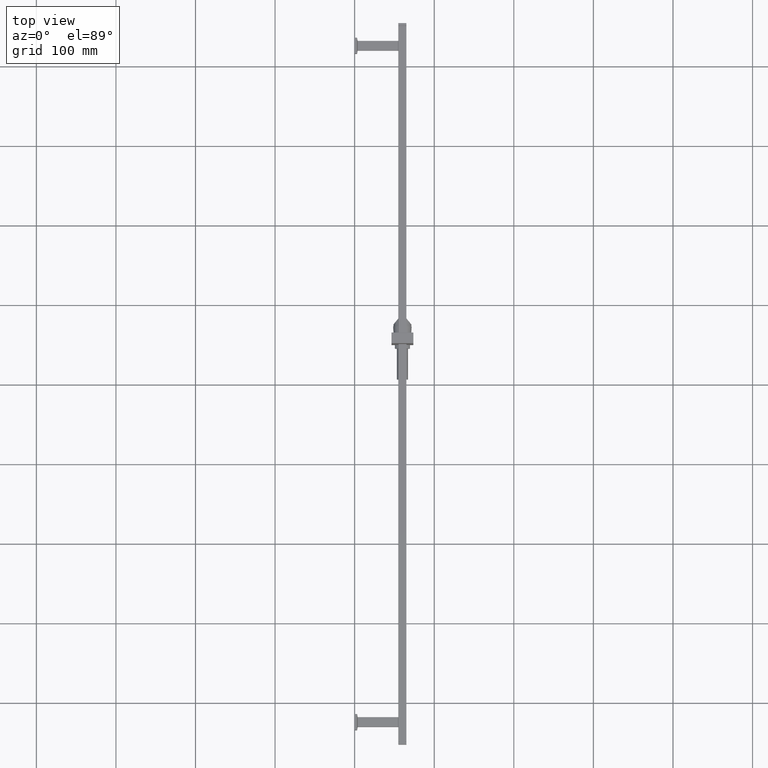
[diagram: clean part render]
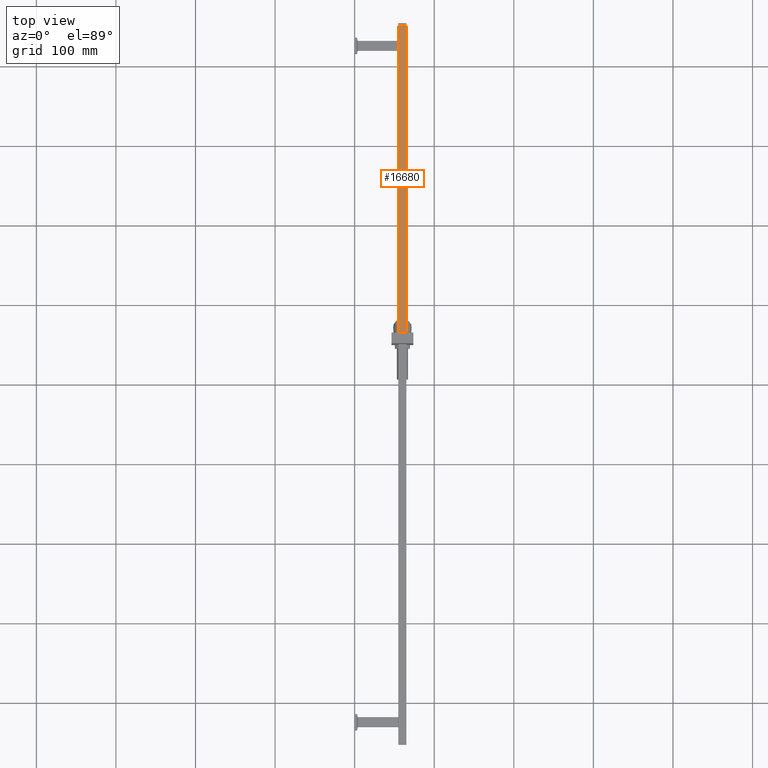
[diagram: same view with one face highlighted and labeled with its STEP entity id]
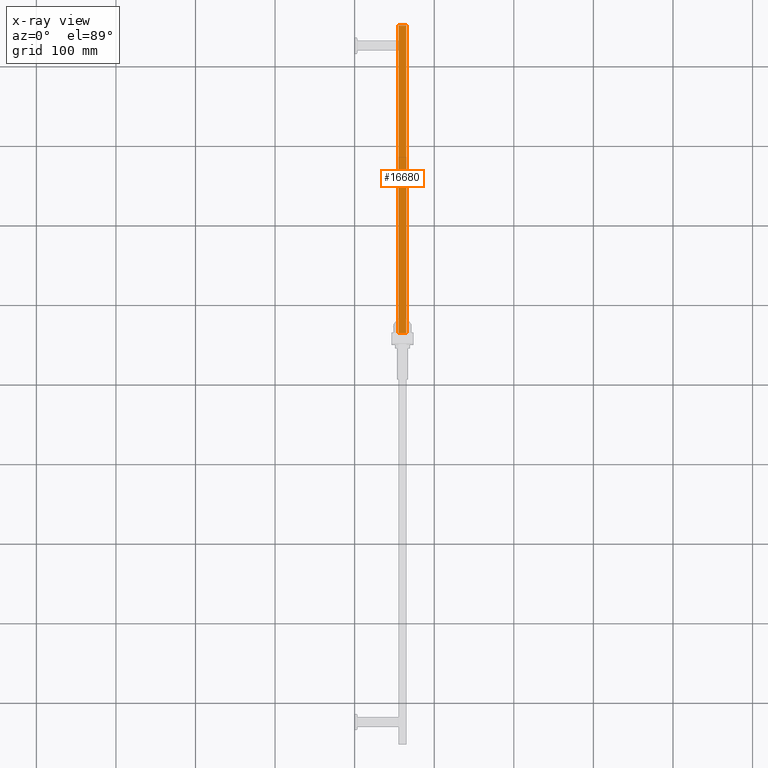
[diagram: x-ray of the same camera — body ghosted, the highlighted face saturated]
A machine part, top view. The second image highlights one B-rep face of the part: STEP entity #16680.
The next image is the same camera in x-ray: the body ghosted, the highlighted face saturated — about 0% of this face is hidden behind the body in this view.
In plain terms, the highlighted planar face has unit normal (0, 0, 1).
Its self-contained STEP definition (entity closure, byte-faithful):
#4877=DIRECTION('',(0.E0,1.E0,0.E0));
#4878=VECTOR('',#4877,3.865E2);
#4879=CARTESIAN_POINT('',(6.48E1,6.35E1,1.5E1));
#4880=LINE('',#4879,#4878);
#4885=DIRECTION('',(-1.E0,0.E0,0.E0));
#4886=VECTOR('',#4885,9.6E0);
#4887=CARTESIAN_POINT('',(6.48E1,6.35E1,1.5E1));
#4888=LINE('',#4887,#4886);
#4889=DIRECTION('',(1.E0,0.E0,0.E0));
#4890=VECTOR('',#4889,9.6E0);
#4891=CARTESIAN_POINT('',(5.52E1,4.5E2,1.5E1));
#4892=LINE('',#4891,#4890);
#4897=DIRECTION('',(0.E0,-1.E0,0.E0));
#4898=VECTOR('',#4897,3.865E2);
#4899=CARTESIAN_POINT('',(5.52E1,4.5E2,1.5E1));
#4900=LINE('',#4899,#4898);
#5425=CARTESIAN_POINT('',(5.52E1,6.35E1,1.5E1));
#5426=VERTEX_POINT('',#5425);
#5427=CARTESIAN_POINT('',(6.48E1,6.35E1,1.5E1));
#5428=VERTEX_POINT('',#5427);
#5517=CARTESIAN_POINT('',(5.52E1,4.5E2,1.5E1));
#5518=VERTEX_POINT('',#5517);
#5519=CARTESIAN_POINT('',(6.48E1,4.5E2,1.5E1));
#5520=VERTEX_POINT('',#5519);
#16667=CARTESIAN_POINT('',(0.E0,0.E0,1.5E1));
#16668=DIRECTION('',(0.E0,0.E0,1.E0));
#16669=DIRECTION('',(1.E0,0.E0,0.E0));
#16670=AXIS2_PLACEMENT_3D('',#16667,#16668,#16669);
#16671=PLANE('',#16670);
#16672=ORIENTED_EDGE('',*,*,#6931,.T.);
#16674=ORIENTED_EDGE('',*,*,#16673,.F.);
#16676=ORIENTED_EDGE('',*,*,#16675,.T.);
#16677=ORIENTED_EDGE('',*,*,#16652,.F.);
#16678=EDGE_LOOP('',(#16672,#16674,#16676,#16677));
#16679=FACE_OUTER_BOUND('',#16678,.F.);
#16680=ADVANCED_FACE('',(#16679),#16671,.T.);
#6931=EDGE_CURVE('',#5428,#5426,#4888,.T.);
#16652=EDGE_CURVE('',#5428,#5520,#4880,.T.);
#16673=EDGE_CURVE('',#5518,#5426,#4900,.T.);
#16675=EDGE_CURVE('',#5518,#5520,#4892,.T.);